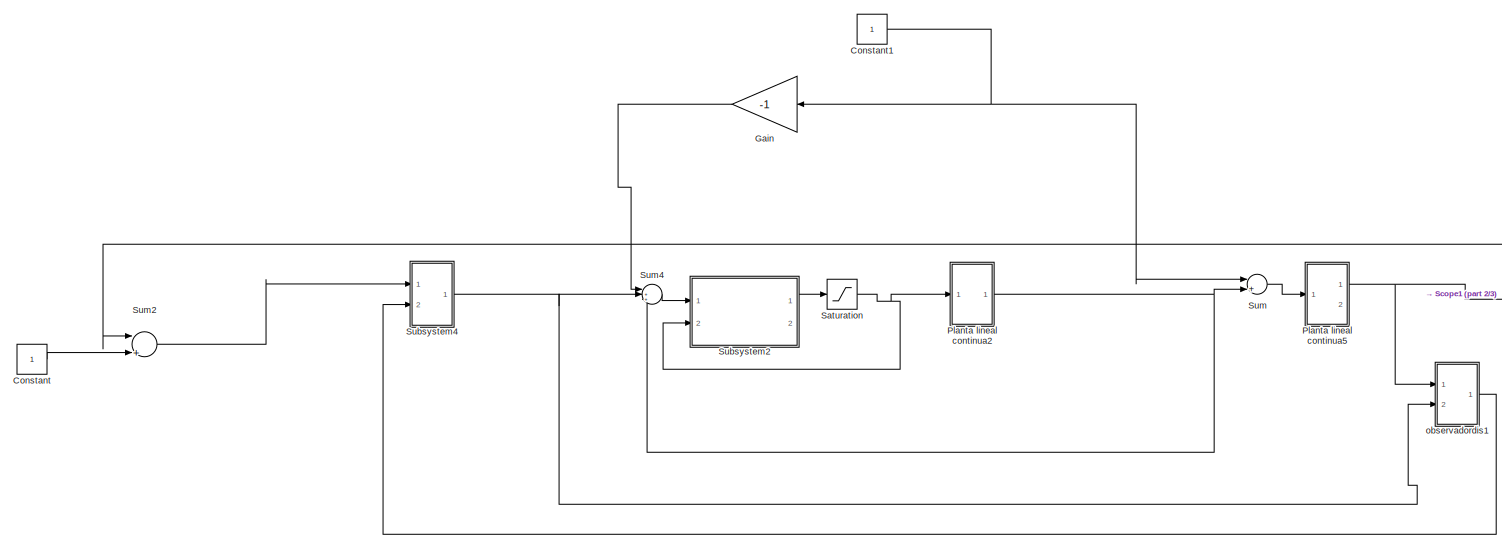
[diagram: root canvas - part 1/3, most of the canvas]
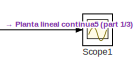
[diagram: root canvas - part 2/3, middle right region]
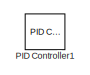
[diagram: root canvas - part 3/3, bottom right region]
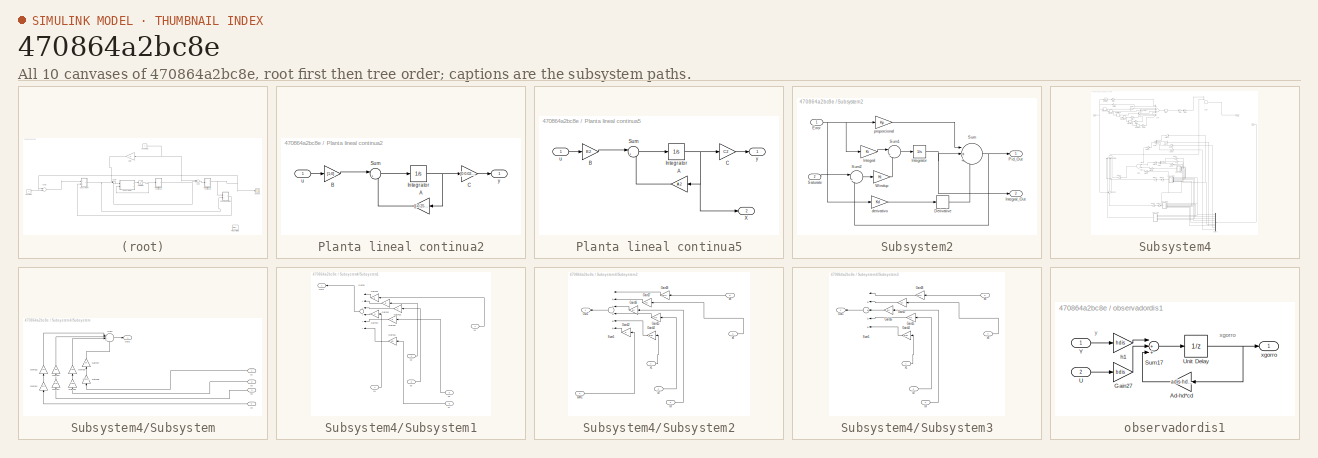
[diagram: thumbnail index - all 10 canvases of the model, root first then tree order]
MODEL slx_470864a2bc8e
KIND model
CONFIG AbsTol = auto
CONFIG EnableMultiTasking = off
CONFIG FixedStep = auto
CONFIG MaxStep = auto
CONFIG MinStep = auto
CONFIG RelTol = 1e-3
CONFIG SampleTimeConstraint = Unconstrained
CONFIG Solver = VariableStepAuto
CONFIG SolverName = VariableStepAuto
CONFIG StartTime = 0.0
CONFIG StopTime = 600
BLOCK [Constant] Constant
BLOCK [Constant] Constant1
BLOCK [Gain] Gain
  Gain = -1
  OutDataTypeStr = Inherit: Inherit via internal rule
  ParamDataTypeStr = Inherit: Inherit via internal rule
  SaturateOnIntegerOverflow = off
BLOCK [Reference] PID Controller1  REF=simulink/Continuous/PID Controller
  Ports = [1, 1]
  SourceBlock = simulink/Continuous/PID Controller
  SourceProductBaseCode = SL
  SourceProductName = Simulink
  SourceType = PID 1dof
BLOCK [SubSystem] Planta lineal continua2
  Ports = [1, 1]
  RequestExecContextInheritance = off
BLOCK [Gain] Planta lineal continua2/A
  Gain = [[-0.25,-0.025];[1 0]]
  Multiplication = Matrix(K*u) (u vector)
  OutDataTypeStr = Inherit: Inherit via internal rule
  ParamDataTypeStr = Inherit: Inherit via internal rule
  SaturateOnIntegerOverflow = off
BLOCK [Gain] Planta lineal continua2/B
  Gain = [1;0]
  Multiplication = Matrix(K*u) (u vector)
  OutDataTypeStr = Inherit: Inherit via internal rule
  ParamDataTypeStr = Inherit: Inherit via internal rule
  SaturateOnIntegerOverflow = off
BLOCK [Gain] Planta lineal continua2/C
  Gain = [0 0.025]
  Multiplication = Matrix(K*u) (u vector)
  OutDataTypeStr = Inherit: Inherit via internal rule
  ParamDataTypeStr = Inherit: Inherit via internal rule
  SaturateOnIntegerOverflow = off
BLOCK [Integrator] Planta lineal continua2/Integrator
  Ports = [1, 1]
BLOCK [Sum] Planta lineal continua2/Sum
  IconShape = round
  InputSameDT = off
  Inputs = |++
  OutDataTypeStr = Inherit: Inherit via internal rule
  Ports = [2, 1]
  SaturateOnIntegerOverflow = off
BLOCK [Inport] Planta lineal continua2/u
  IconDisplay = Port number
BLOCK [Outport] Planta lineal continua2/y
  IconDisplay = Port number
BLOCK [SubSystem] Planta lineal continua5
  Ports = [1, 2]
  RequestExecContextInheritance = off
BLOCK [Gain] Planta lineal continua5/A
  Gain = A2
  Multiplication = Matrix(K*u) (u vector)
  OutDataTypeStr = Inherit: Inherit via internal rule
  ParamDataTypeStr = Inherit: Inherit via internal rule
  SaturateOnIntegerOverflow = off
BLOCK [Gain] Planta lineal continua5/B
  Gain = B2
  Multiplication = Matrix(K*u) (u vector)
  OutDataTypeStr = Inherit: Inherit via internal rule
  ParamDataTypeStr = Inherit: Inherit via internal rule
  SaturateOnIntegerOverflow = off
BLOCK [Gain] Planta lineal continua5/C
  Gain = C2
  Multiplication = Matrix(K*u) (u vector)
  OutDataTypeStr = Inherit: Inherit via internal rule
  ParamDataTypeStr = Inherit: Inherit via internal rule
  SaturateOnIntegerOverflow = off
BLOCK [Integrator] Planta lineal continua5/Integrator
  Ports = [1, 1]
BLOCK [Sum] Planta lineal continua5/Sum
  IconShape = round
  InputSameDT = off
  Inputs = |++
  OutDataTypeStr = Inherit: Inherit via internal rule
  Ports = [2, 1]
  SaturateOnIntegerOverflow = off
BLOCK [Outport] Planta lineal continua5/X
  IconDisplay = Port number
  Port = 2
BLOCK [Inport] Planta lineal continua5/u
  IconDisplay = Port number
BLOCK [Outport] Planta lineal continua5/y
  IconDisplay = Port number
BLOCK [Saturate] Saturation
  InputPortMap = u0
  LowerLimit = -1
  Ports = [1, 1]
  UpperLimit = 1
  ZeroCross = off
BLOCK [Scope] Scope1
  Floating = off
  NumInputPorts = 1
  Ports = [1]
  ScopeSpecificationString = Simulink.scopes.TimeScopeBlockCfg('CurrentConfiguration', extmgr.ConfigurationSet(extmgr.Configuration('Core','General UI',true),extmgr.Configuration('Core','Source UI',true),extmgr.Configuration('Sources','WiredSimulink',true,'DataLoggingVariableName','ScopeData1'),extmgr.Configuration('Visuals','Time Domain',true,'SerializedDisplays',{struct('MinYLimReal','-0.1362','MaxYLimReal','1.22584','YLabe...<+1434ch>
BLOCK [SubSystem] Subsystem2
  Ports = [2, 2]
  RequestExecContextInheritance = off
BLOCK [Derivative] Subsystem2/Derivative
BLOCK [Inport] Subsystem2/Error
  IconDisplay = Port number
BLOCK [Gain] Subsystem2/Integral
  Gain = Ki
BLOCK [Outport] Subsystem2/Integral_Out
  IconDisplay = Port number
  Port = 2
BLOCK [Integrator] Subsystem2/Integrator
  Ports = [1, 1]
BLOCK [Outport] Subsystem2/Pid_Out
  IconDisplay = Port number
BLOCK [Inport] Subsystem2/Saturate
  IconDisplay = Port number
  Port = 2
BLOCK [Sum] Subsystem2/Sum
  IconShape = round
  Inputs = |+++
  Ports = [3, 1]
BLOCK [Sum] Subsystem2/Sum1
  IconShape = round
  Inputs = |++
  Ports = [2, 1]
BLOCK [Sum] Subsystem2/Sum2
  IconShape = round
  Inputs = |+-
  Ports = [2, 1]
BLOCK [Gain] Subsystem2/Windup
  Gain = Kt
BLOCK [Gain] Subsystem2/derivativo
  Gain = Kd
BLOCK [Gain] Subsystem2/proporcional
  Gain = Kp
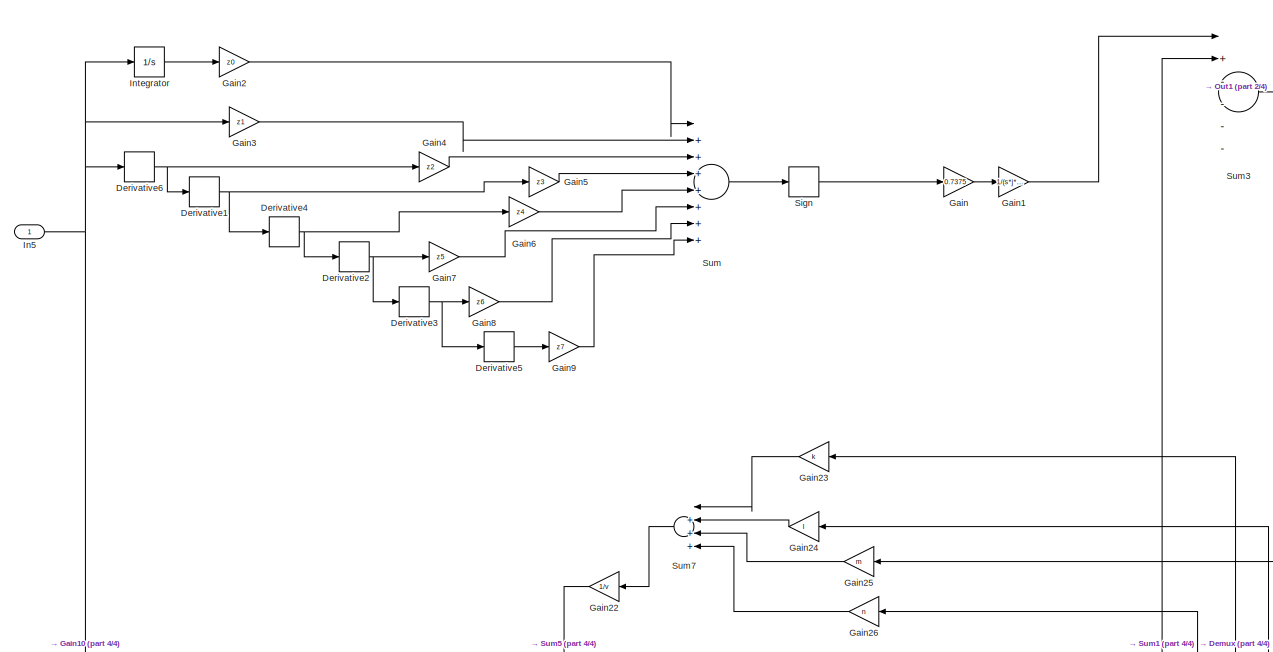
[diagram: Subsystem4 - part 1/4, top center region]
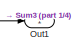
[diagram: Subsystem4 - part 2/4, top right region]
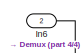
[diagram: Subsystem4 - part 3/4, top right region]
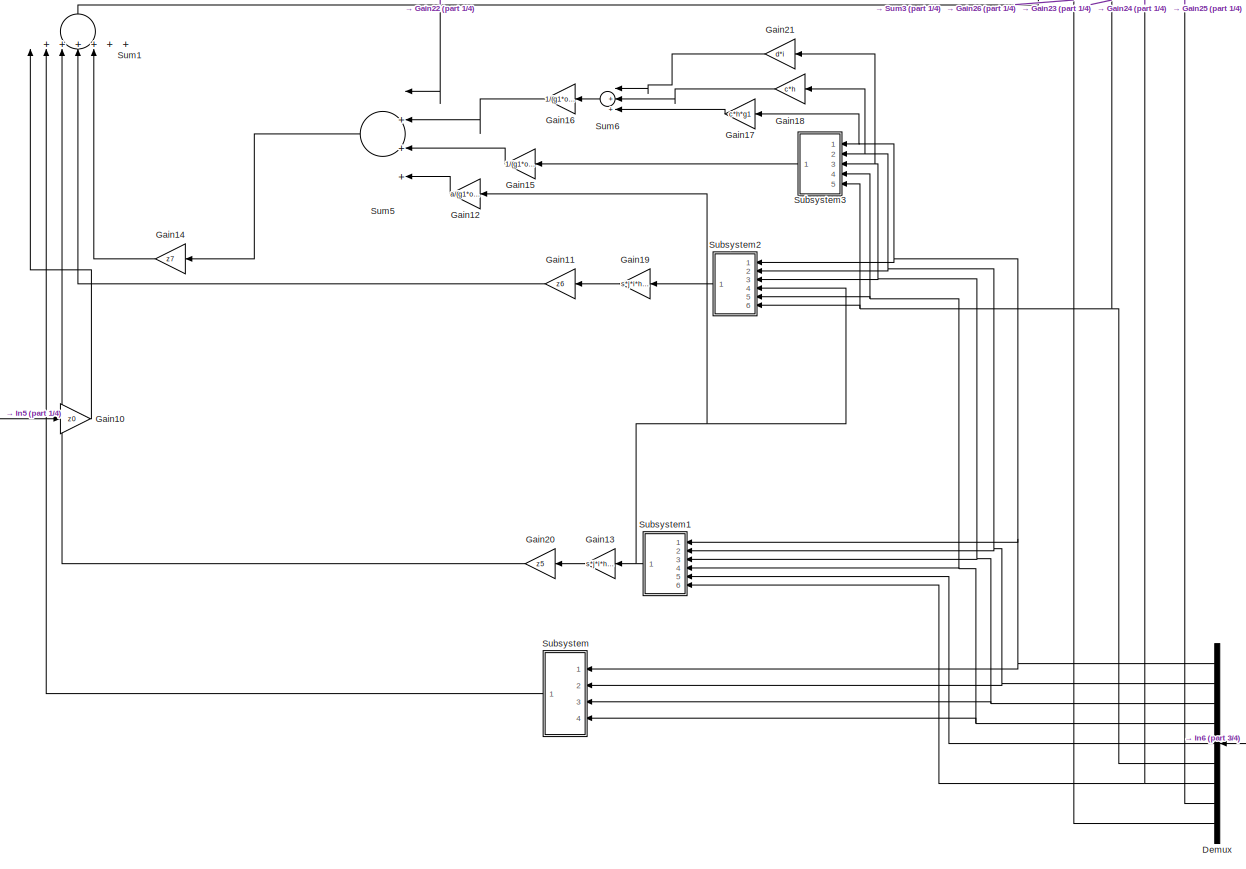
[diagram: Subsystem4 - part 4/4, bottom center region]
BLOCK [SubSystem] Subsystem4
  Ports = [2, 1]
  RequestExecContextInheritance = off
BLOCK [Demux] Subsystem4/Demux
  DisplayOption = bar
  Outputs = 9
  Ports = [1, 9]
BLOCK [Derivative] Subsystem4/Derivative1
BLOCK [Derivative] Subsystem4/Derivative2
BLOCK [Derivative] Subsystem4/Derivative3
BLOCK [Derivative] Subsystem4/Derivative4
BLOCK [Derivative] Subsystem4/Derivative5
BLOCK [Derivative] Subsystem4/Derivative6
BLOCK [Gain] Subsystem4/Gain
  Gain = 0.7375
  OutDataTypeStr = Inherit: Inherit via internal rule
  ParamDataTypeStr = Inherit: Inherit via internal rule
  SaturateOnIntegerOverflow = off
BLOCK [Gain] Subsystem4/Gain1
  Gain = 1/(s*j*i*h*g1*a*g2*o*v)
  OutDataTypeStr = Inherit: Inherit via internal rule
  ParamDataTypeStr = Inherit: Inherit via internal rule
  SaturateOnIntegerOverflow = off
BLOCK [Gain] Subsystem4/Gain10
  Gain = z0
  OutDataTypeStr = Inherit: Inherit via internal rule
  ParamDataTypeStr = Inherit: Inherit via internal rule
  SaturateOnIntegerOverflow = off
BLOCK [Gain] Subsystem4/Gain11
  Gain = z6
  OutDataTypeStr = Inherit: Inherit via internal rule
  ParamDataTypeStr = Inherit: Inherit via internal rule
  SaturateOnIntegerOverflow = off
BLOCK [Gain] Subsystem4/Gain12
  Gain = a/(g1*o*v)
  OutDataTypeStr = Inherit: Inherit via internal rule
  ParamDataTypeStr = Inherit: Inherit via internal rule
  SaturateOnIntegerOverflow = off
BLOCK [Gain] Subsystem4/Gain13
  Gain = s*j*i*h*g1
  OutDataTypeStr = Inherit: Inherit via internal rule
  ParamDataTypeStr = Inherit: Inherit via internal rule
  SaturateOnIntegerOverflow = off
BLOCK [Gain] Subsystem4/Gain14
  Gain = z7
  OutDataTypeStr = Inherit: Inherit via internal rule
  ParamDataTypeStr = Inherit: Inherit via internal rule
  SaturateOnIntegerOverflow = off
BLOCK [Gain] Subsystem4/Gain15
  Gain = 1/(g1*o*v)
  OutDataTypeStr = Inherit: Inherit via internal rule
  ParamDataTypeStr = Inherit: Inherit via internal rule
  SaturateOnIntegerOverflow = off
BLOCK [Gain] Subsystem4/Gain16
  Gain = 1/(g1*o*v)
  OutDataTypeStr = Inherit: Inherit via internal rule
  ParamDataTypeStr = Inherit: Inherit via internal rule
  SaturateOnIntegerOverflow = off
BLOCK [Gain] Subsystem4/Gain17
  Gain = c*h*g1
  OutDataTypeStr = Inherit: Inherit via internal rule
  ParamDataTypeStr = Inherit: Inherit via internal rule
  SaturateOnIntegerOverflow = off
BLOCK [Gain] Subsystem4/Gain18
  Gain = c*h
  OutDataTypeStr = Inherit: Inherit via internal rule
  ParamDataTypeStr = Inherit: Inherit via internal rule
  SaturateOnIntegerOverflow = off
BLOCK [Gain] Subsystem4/Gain19
  Gain = s*j*i*h*g1
  OutDataTypeStr = Inherit: Inherit via internal rule
  ParamDataTypeStr = Inherit: Inherit via internal rule
  SaturateOnIntegerOverflow = off
BLOCK [Gain] Subsystem4/Gain2
  Gain = z0
  OutDataTypeStr = Inherit: Inherit via internal rule
  ParamDataTypeStr = Inherit: Inherit via internal rule
  SaturateOnIntegerOverflow = off
BLOCK [Gain] Subsystem4/Gain20
  Gain = z5
  OutDataTypeStr = Inherit: Inherit via internal rule
  ParamDataTypeStr = Inherit: Inherit via internal rule
  SaturateOnIntegerOverflow = off
BLOCK [Gain] Subsystem4/Gain21
  Gain = d*i
  OutDataTypeStr = Inherit: Inherit via internal rule
  ParamDataTypeStr = Inherit: Inherit via internal rule
  SaturateOnIntegerOverflow = off
BLOCK [Gain] Subsystem4/Gain22
  Gain = 1/v
  OutDataTypeStr = Inherit: Inherit via internal rule
  ParamDataTypeStr = Inherit: Inherit via internal rule
  SaturateOnIntegerOverflow = off
BLOCK [Gain] Subsystem4/Gain23
  Gain = k
  OutDataTypeStr = Inherit: Inherit via internal rule
  ParamDataTypeStr = Inherit: Inherit via internal rule
  SaturateOnIntegerOverflow = off
BLOCK [Gain] Subsystem4/Gain24
  Gain = l
  OutDataTypeStr = Inherit: Inherit via internal rule
  ParamDataTypeStr = Inherit: Inherit via internal rule
  SaturateOnIntegerOverflow = off
BLOCK [Gain] Subsystem4/Gain25
  Gain = m
  OutDataTypeStr = Inherit: Inherit via internal rule
  ParamDataTypeStr = Inherit: Inherit via internal rule
  SaturateOnIntegerOverflow = off
BLOCK [Gain] Subsystem4/Gain26
  Gain = n
  OutDataTypeStr = Inherit: Inherit via internal rule
  ParamDataTypeStr = Inherit: Inherit via internal rule
  SaturateOnIntegerOverflow = off
BLOCK [Gain] Subsystem4/Gain3
  Gain = z1
  OutDataTypeStr = Inherit: Inherit via internal rule
  ParamDataTypeStr = Inherit: Inherit via internal rule
  SaturateOnIntegerOverflow = off
BLOCK [Gain] Subsystem4/Gain4
  Gain = z2
  OutDataTypeStr = Inherit: Inherit via internal rule
  ParamDataTypeStr = Inherit: Inherit via internal rule
  SaturateOnIntegerOverflow = off
BLOCK [Gain] Subsystem4/Gain5
  Gain = z3
  OutDataTypeStr = Inherit: Inherit via internal rule
  ParamDataTypeStr = Inherit: Inherit via internal rule
  SaturateOnIntegerOverflow = off
BLOCK [Gain] Subsystem4/Gain6
  Gain = z4
  OutDataTypeStr = Inherit: Inherit via internal rule
  ParamDataTypeStr = Inherit: Inherit via internal rule
  SaturateOnIntegerOverflow = off
BLOCK [Gain] Subsystem4/Gain7
  Gain = z5
  OutDataTypeStr = Inherit: Inherit via internal rule
  ParamDataTypeStr = Inherit: Inherit via internal rule
  SaturateOnIntegerOverflow = off
BLOCK [Gain] Subsystem4/Gain8
  Gain = z6
  OutDataTypeStr = Inherit: Inherit via internal rule
  ParamDataTypeStr = Inherit: Inherit via internal rule
  SaturateOnIntegerOverflow = off
BLOCK [Gain] Subsystem4/Gain9
  Gain = z7
  OutDataTypeStr = Inherit: Inherit via internal rule
  ParamDataTypeStr = Inherit: Inherit via internal rule
  SaturateOnIntegerOverflow = off
BLOCK [Inport] Subsystem4/In5
  IconDisplay = Port number
BLOCK [Inport] Subsystem4/In6
  IconDisplay = Port number
  Port = 2
BLOCK [Integrator] Subsystem4/Integrator
  Ports = [1, 1]
BLOCK [Outport] Subsystem4/Out1
  IconDisplay = Port number
BLOCK [Signum] Subsystem4/Sign
  ZeroCross = off
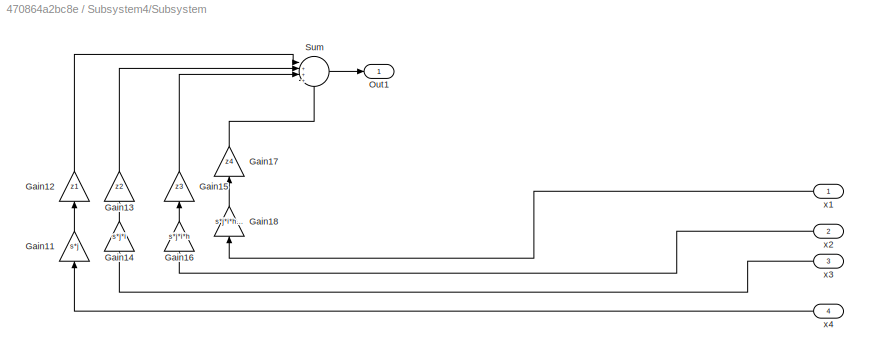
BLOCK [SubSystem] Subsystem4/Subsystem
  Ports = [4, 1]
  RequestExecContextInheritance = off
BLOCK [Gain] Subsystem4/Subsystem/Gain11
  Gain = s*j
  OutDataTypeStr = Inherit: Inherit via internal rule
  ParamDataTypeStr = Inherit: Inherit via internal rule
  SaturateOnIntegerOverflow = off
BLOCK [Gain] Subsystem4/Subsystem/Gain12
  Gain = z1
  OutDataTypeStr = Inherit: Inherit via internal rule
  ParamDataTypeStr = Inherit: Inherit via internal rule
  SaturateOnIntegerOverflow = off
BLOCK [Gain] Subsystem4/Subsystem/Gain13
  Gain = z2
  OutDataTypeStr = Inherit: Inherit via internal rule
  ParamDataTypeStr = Inherit: Inherit via internal rule
  SaturateOnIntegerOverflow = off
BLOCK [Gain] Subsystem4/Subsystem/Gain14
  Gain = s*j*i
  OutDataTypeStr = Inherit: Inherit via internal rule
  ParamDataTypeStr = Inherit: Inherit via internal rule
  SaturateOnIntegerOverflow = off
BLOCK [Gain] Subsystem4/Subsystem/Gain15
  Gain = z3
  OutDataTypeStr = Inherit: Inherit via internal rule
  ParamDataTypeStr = Inherit: Inherit via internal rule
  SaturateOnIntegerOverflow = off
BLOCK [Gain] Subsystem4/Subsystem/Gain16
  Gain = s*j*i*h
  OutDataTypeStr = Inherit: Inherit via internal rule
  ParamDataTypeStr = Inherit: Inherit via internal rule
  SaturateOnIntegerOverflow = off
BLOCK [Gain] Subsystem4/Subsystem/Gain17
  Gain = z4
  OutDataTypeStr = Inherit: Inherit via internal rule
  ParamDataTypeStr = Inherit: Inherit via internal rule
  SaturateOnIntegerOverflow = off
BLOCK [Gain] Subsystem4/Subsystem/Gain18
  Gain = s*j*i*h*g1
  OutDataTypeStr = Inherit: Inherit via internal rule
  ParamDataTypeStr = Inherit: Inherit via internal rule
  SaturateOnIntegerOverflow = off
BLOCK [Outport] Subsystem4/Subsystem/Out1
  IconDisplay = Port number
BLOCK [Sum] Subsystem4/Subsystem/Sum
  IconShape = round
  InputSameDT = off
  Inputs = |++++
  OutDataTypeStr = Inherit: Inherit via internal rule
  Ports = [4, 1]
  SaturateOnIntegerOverflow = off
BLOCK [Inport] Subsystem4/Subsystem/x1 
  IconDisplay = Port number
BLOCK [Inport] Subsystem4/Subsystem/x2 
  IconDisplay = Port number
  Port = 2
BLOCK [Inport] Subsystem4/Subsystem/x3 
  IconDisplay = Port number
  Port = 3
BLOCK [Inport] Subsystem4/Subsystem/x4 
  IconDisplay = Port number
  Port = 4
BLOCK [SubSystem] Subsystem4/Subsystem1
  Ports = [6, 1]
  RequestExecContextInheritance = off
BLOCK [Gain] Subsystem4/Subsystem1/Gain11
  Gain = a
  OutDataTypeStr = Inherit: Inherit via internal rule
  ParamDataTypeStr = Inherit: Inherit via internal rule
  SaturateOnIntegerOverflow = off
BLOCK [Gain] Subsystem4/Subsystem1/Gain12
  Gain = b
  OutDataTypeStr = Inherit: Inherit via internal rule
  ParamDataTypeStr = Inherit: Inherit via internal rule
  SaturateOnIntegerOverflow = off
BLOCK [Gain] Subsystem4/Subsystem1/Gain13
  Gain = c
  OutDataTypeStr = Inherit: Inherit via internal rule
  ParamDataTypeStr = Inherit: Inherit via internal rule
  SaturateOnIntegerOverflow = off
BLOCK [Gain] Subsystem4/Subsystem1/Gain14
  Gain = d
  OutDataTypeStr = Inherit: Inherit via internal rule
  ParamDataTypeStr = Inherit: Inherit via internal rule
  SaturateOnIntegerOverflow = off
BLOCK [Gain] Subsystem4/Subsystem1/Gain15
  Gain = e
  OutDataTypeStr = Inherit: Inherit via internal rule
  ParamDataTypeStr = Inherit: Inherit via internal rule
  SaturateOnIntegerOverflow = off
BLOCK [Gain] Subsystem4/Subsystem1/Gain16
  Gain = g2
  OutDataTypeStr = Inherit: Inherit via internal rule
  ParamDataTypeStr = Inherit: Inherit via internal rule
  SaturateOnIntegerOverflow = off
BLOCK [Outport] Subsystem4/Subsystem1/Out1
  IconDisplay = Port number
BLOCK [Sum] Subsystem4/Subsystem1/Sum5
  InputSameDT = off
  Inputs = |++++++
  OutDataTypeStr = Inherit: Inherit via internal rule
  Ports = [6, 1]
  SaturateOnIntegerOverflow = off
BLOCK [Inport] Subsystem4/Subsystem1/x1 
  IconDisplay = Port number
BLOCK [Inport] Subsystem4/Subsystem1/x2 
  IconDisplay = Port number
  Port = 2
BLOCK [Inport] Subsystem4/Subsystem1/x3 
  IconDisplay = Port number
  Port = 3
BLOCK [Inport] Subsystem4/Subsystem1/x4 
  IconDisplay = Port number
  Port = 4
BLOCK [Inport] Subsystem4/Subsystem1/x5 
  IconDisplay = Port number
  Port = 5
BLOCK [Inport] Subsystem4/Subsystem1/x7 
  IconDisplay = Port number
  Port = 6
BLOCK [SubSystem] Subsystem4/Subsystem2
  Ports = [6, 1]
  RequestExecContextInheritance = off
BLOCK [Gain] Subsystem4/Subsystem2/Gain12
  Gain = a
  OutDataTypeStr = Inherit: Inherit via internal rule
  ParamDataTypeStr = Inherit: Inherit via internal rule
  SaturateOnIntegerOverflow = off
BLOCK [Gain] Subsystem4/Subsystem2/Gain14
  Gain = b*g1
  OutDataTypeStr = Inherit: Inherit via internal rule
  ParamDataTypeStr = Inherit: Inherit via internal rule
  SaturateOnIntegerOverflow = off
BLOCK [Gain] Subsystem4/Subsystem2/Gain15
  Gain = s*h
  OutDataTypeStr = Inherit: Inherit via internal rule
  ParamDataTypeStr = Inherit: Inherit via internal rule
  SaturateOnIntegerOverflow = off
BLOCK [Gain] Subsystem4/Subsystem2/Gain16
  Gain = d*i
  OutDataTypeStr = Inherit: Inherit via internal rule
  ParamDataTypeStr = Inherit: Inherit via internal rule
  SaturateOnIntegerOverflow = off
BLOCK [Gain] Subsystem4/Subsystem2/Gain17
  Gain = e*j
  OutDataTypeStr = Inherit: Inherit via internal rule
  ParamDataTypeStr = Inherit: Inherit via internal rule
  SaturateOnIntegerOverflow = off
BLOCK [Gain] Subsystem4/Subsystem2/Gain18
  Gain = g2*o
  OutDataTypeStr = Inherit: Inherit via internal rule
  ParamDataTypeStr = Inherit: Inherit via internal rule
  SaturateOnIntegerOverflow = off
BLOCK [Outport] Subsystem4/Subsystem2/Out1
  IconDisplay = Port number
BLOCK [Sum] Subsystem4/Subsystem2/Sum5
  InputSameDT = off
  Inputs = |++++++
  OutDataTypeStr = Inherit: Inherit via internal rule
  Ports = [6, 1]
  SaturateOnIntegerOverflow = off
BLOCK [Inport] Subsystem4/Subsystem2/sum1 
  IconDisplay = Port number
  Port = 4
BLOCK [Inport] Subsystem4/Subsystem2/x1 
  IconDisplay = Port number
BLOCK [Inport] Subsystem4/Subsystem2/x2 
  IconDisplay = Port number
  Port = 2
BLOCK [Inport] Subsystem4/Subsystem2/x3 
  IconDisplay = Port number
  Port = 3
BLOCK [Inport] Subsystem4/Subsystem2/x4 
  IconDisplay = Port number
  Port = 5
BLOCK [Inport] Subsystem4/Subsystem2/x6 
  IconDisplay = Port number
  Port = 6
BLOCK [SubSystem] Subsystem4/Subsystem3
  Ports = [5, 1]
  RequestExecContextInheritance = off
BLOCK [Gain] Subsystem4/Subsystem3/Gain14
  Gain = b*g1
  OutDataTypeStr = Inherit: Inherit via internal rule
  ParamDataTypeStr = Inherit: Inherit via internal rule
  SaturateOnIntegerOverflow = off
BLOCK [Gain] Subsystem4/Subsystem3/Gain15
  Gain = s*h
  OutDataTypeStr = Inherit: Inherit via internal rule
  ParamDataTypeStr = Inherit: Inherit via internal rule
  SaturateOnIntegerOverflow = off
BLOCK [Gain] Subsystem4/Subsystem3/Gain16
  Gain = d*i
  OutDataTypeStr = Inherit: Inherit via internal rule
  ParamDataTypeStr = Inherit: Inherit via internal rule
  SaturateOnIntegerOverflow = off
BLOCK [Gain] Subsystem4/Subsystem3/Gain17
  Gain = e*j
  OutDataTypeStr = Inherit: Inherit via internal rule
  ParamDataTypeStr = Inherit: Inherit via internal rule
  SaturateOnIntegerOverflow = off
BLOCK [Gain] Subsystem4/Subsystem3/Gain18
  Gain = g2*o
  OutDataTypeStr = Inherit: Inherit via internal rule
  ParamDataTypeStr = Inherit: Inherit via internal rule
  SaturateOnIntegerOverflow = off
BLOCK [Outport] Subsystem4/Subsystem3/Out1
  IconDisplay = Port number
BLOCK [Sum] Subsystem4/Subsystem3/Sum5
  InputSameDT = off
  Inputs = |+++++
  OutDataTypeStr = Inherit: Inherit via internal rule
  Ports = [5, 1]
  SaturateOnIntegerOverflow = off
BLOCK [Inport] Subsystem4/Subsystem3/x1 
  IconDisplay = Port number
BLOCK [Inport] Subsystem4/Subsystem3/x2 
  IconDisplay = Port number
  Port = 2
BLOCK [Inport] Subsystem4/Subsystem3/x3 
  IconDisplay = Port number
  Port = 3
BLOCK [Inport] Subsystem4/Subsystem3/x4 
  IconDisplay = Port number
  Port = 4
BLOCK [Inport] Subsystem4/Subsystem3/x6 
  IconDisplay = Port number
  Port = 5
BLOCK [Sum] Subsystem4/Sum
  InputSameDT = off
  Inputs = |++++++++
  OutDataTypeStr = Inherit: Inherit via internal rule
  Ports = [8, 1]
  SaturateOnIntegerOverflow = off
BLOCK [Sum] Subsystem4/Sum1
  InputSameDT = off
  Inputs = |+++++++
  OutDataTypeStr = Inherit: Inherit via internal rule
  Ports = [7, 1]
  SaturateOnIntegerOverflow = off
BLOCK [Sum] Subsystem4/Sum3
  InputSameDT = off
  Inputs = |+-----
  OutDataTypeStr = Inherit: Inherit via internal rule
  Ports = [6, 1]
  SaturateOnIntegerOverflow = off
BLOCK [Sum] Subsystem4/Sum5
  InputSameDT = off
  Inputs = |++++
  OutDataTypeStr = Inherit: Inherit via internal rule
  Ports = [4, 1]
  SaturateOnIntegerOverflow = off
BLOCK [Sum] Subsystem4/Sum6
  InputSameDT = off
  Inputs = |+++
  OutDataTypeStr = Inherit: Inherit via internal rule
  Ports = [3, 1]
  SaturateOnIntegerOverflow = off
BLOCK [Sum] Subsystem4/Sum7
  InputSameDT = off
  Inputs = |++++
  OutDataTypeStr = Inherit: Inherit via internal rule
  Ports = [4, 1]
  SaturateOnIntegerOverflow = off
BLOCK [Sum] Sum
  InputSameDT = off
  Inputs = |++
  OutDataTypeStr = Inherit: Inherit via internal rule
  Ports = [2, 1]
  SaturateOnIntegerOverflow = off
BLOCK [Sum] Sum2
  InputSameDT = off
  Inputs = |+-
  OutDataTypeStr = Inherit: Inherit via internal rule
  Ports = [2, 1]
  SaturateOnIntegerOverflow = off
BLOCK [Sum] Sum4
  IconShape = round
  InputSameDT = off
  Inputs = |++-
  OutDataTypeStr = Inherit: Inherit via internal rule
  Ports = [3, 1]
  SaturateOnIntegerOverflow = off
BLOCK [SubSystem] observadordis1
  Ports = [2, 1]
  RequestExecContextInheritance = off
BLOCK [Gain] observadordis1/Ad-hd*cd
  Gain = adis-hdis*cdis
  Multiplication = Matrix(K*u) (u vector)
  OutDataTypeStr = Inherit: Inherit via internal rule
  ParamDataTypeStr = Inherit: Inherit via internal rule
  SampleTime = tm
  SaturateOnIntegerOverflow = off
BLOCK [Gain] observadordis1/Gain27
  Gain = bdis
  Multiplication = Matrix(K*u) (u vector)
  OutDataTypeStr = Inherit: Inherit via internal rule
  ParamDataTypeStr = Inherit: Inherit via internal rule
  SampleTime = tm
  SaturateOnIntegerOverflow = off
BLOCK [Sum] observadordis1/Sum17
  InputSameDT = off
  Inputs = |+++
  OutDataTypeStr = Inherit: Inherit via internal rule
  Ports = [3, 1]
  SaturateOnIntegerOverflow = off
BLOCK [Inport] observadordis1/U
  IconDisplay = Port number
  Port = 2
BLOCK [UnitDelay] observadordis1/Unit Delay
  HasFrameUpgradeWarning = on
  SampleTime = tm
BLOCK [Inport] observadordis1/Y
  IconDisplay = Port number
BLOCK [Gain] observadordis1/h1
  Gain = hdis
  Multiplication = Matrix(K*u) (u vector)
  OutDataTypeStr = Inherit: Inherit via internal rule
  ParamDataTypeStr = Inherit: Inherit via internal rule
  SampleTime = tm
  SaturateOnIntegerOverflow = off
BLOCK [Outport] observadordis1/xgorro
  IconDisplay = Port number
ANNOTATION observadordis1: xgorro
ANNOTATION observadordis1: y
NET Constant1:1 -> Gain:1, Sum:1
LINE Constant:1 -> Sum2:2
LINE Gain:1 -> Sum4:1
LINE Planta lineal continua2/A:1 -> Planta lineal continua2/Sum:2
LINE Planta lineal continua2/B:1 -> Planta lineal continua2/Sum:1
LINE Planta lineal continua2/C:1 -> Planta lineal continua2/y:1
NET Planta lineal continua2/Integrator:1 -> Planta lineal continua2/A:1, Planta lineal continua2/C:1
LINE Planta lineal continua2/Sum:1 -> Planta lineal continua2/Integrator:1
LINE Planta lineal continua2/u:1 -> Planta lineal continua2/B:1
NET Planta lineal continua2:1 -> Sum4:3, Sum:2
LINE Planta lineal continua5/A:1 -> Planta lineal continua5/Sum:2
LINE Planta lineal continua5/B:1 -> Planta lineal continua5/Sum:1
LINE Planta lineal continua5/C:1 -> Planta lineal continua5/y:1
NET Planta lineal continua5/Integrator:1 -> Planta lineal continua5/A:1, Planta lineal continua5/C:1, Planta lineal continua5/X:1
LINE Planta lineal continua5/Sum:1 -> Planta lineal continua5/Integrator:1
LINE Planta lineal continua5/u:1 -> Planta lineal continua5/B:1
NET Planta lineal continua5:1 -> Scope1:1, Sum2:1, observadordis1:1
NET Saturation:1 -> Planta lineal continua2:1, Subsystem2:2
LINE Subsystem2/Derivative:1 -> Subsystem2/Sum:3
NET Subsystem2/Error:1 -> Subsystem2/Integral:1, Subsystem2/derivativo:1, Subsystem2/proporcional:1
LINE Subsystem2/Integral:1 -> Subsystem2/Sum1:1
NET Subsystem2/Integrator:1 -> Subsystem2/Integral_Out:1, Subsystem2/Sum:2
LINE Subsystem2/Saturate:1 -> Subsystem2/Sum2:1
LINE Subsystem2/Sum1:1 -> Subsystem2/Integrator:1
LINE Subsystem2/Sum2:1 -> Subsystem2/Windup:1
NET Subsystem2/Sum:1 -> Subsystem2/Pid_Out:1, Subsystem2/Sum2:2
LINE Subsystem2/Windup:1 -> Subsystem2/Sum1:2
LINE Subsystem2/derivativo:1 -> Subsystem2/Derivative:1
LINE Subsystem2/proporcional:1 -> Subsystem2/Sum:1
LINE Subsystem2:1 -> Saturation:1
NET Subsystem4/Demux:1 -> Subsystem4/Gain17:1, Subsystem4/Subsystem1:1, Subsystem4/Subsystem2:1, Subsystem4/Subsystem3:1, Subsystem4/Subsystem:1
NET Subsystem4/Demux:2 -> Subsystem4/Gain18:1, Subsystem4/Subsystem1:2, Subsystem4/Subsystem2:2, Subsystem4/Subsystem3:2, Subsystem4/Subsystem:2
NET Subsystem4/Demux:3 -> Subsystem4/Gain21:1, Subsystem4/Subsystem1:3, Subsystem4/Subsystem2:3, Subsystem4/Subsystem3:3, Subsystem4/Subsystem:3
NET Subsystem4/Demux:4 -> Subsystem4/Subsystem1:4, Subsystem4/Subsystem2:5, Subsystem4/Subsystem3:4, Subsystem4/Subsystem:4
LINE Subsystem4/Demux:5 -> Subsystem4/Subsystem1:5
NET Subsystem4/Demux:6 -> Subsystem4/Gain23:1, Subsystem4/Subsystem2:6, Subsystem4/Subsystem3:5
NET Subsystem4/Demux:7 -> Subsystem4/Gain24:1, Subsystem4/Subsystem1:6
LINE Subsystem4/Demux:8 -> Subsystem4/Gain25:1
LINE Subsystem4/Demux:9 -> Subsystem4/Gain26:1
NET Subsystem4/Derivative1:1 -> Subsystem4/Derivative4:1, Subsystem4/Gain5:1
NET Subsystem4/Derivative2:1 -> Subsystem4/Derivative3:1, Subsystem4/Gain7:1
NET Subsystem4/Derivative3:1 -> Subsystem4/Derivative5:1, Subsystem4/Gain8:1
NET Subsystem4/Derivative4:1 -> Subsystem4/Derivative2:1, Subsystem4/Gain6:1
LINE Subsystem4/Derivative5:1 -> Subsystem4/Gain9:1
NET Subsystem4/Derivative6:1 -> Subsystem4/Derivative1:1, Subsystem4/Gain4:1
LINE Subsystem4/Gain10:1 -> Subsystem4/Sum1:1
LINE Subsystem4/Gain11:1 -> Subsystem4/Sum1:4
LINE Subsystem4/Gain12:1 -> Subsystem4/Sum5:4
LINE Subsystem4/Gain13:1 -> Subsystem4/Gain20:1
LINE Subsystem4/Gain14:1 -> Subsystem4/Sum1:5
LINE Subsystem4/Gain15:1 -> Subsystem4/Sum5:3
LINE Subsystem4/Gain16:1 -> Subsystem4/Sum5:2
LINE Subsystem4/Gain17:1 -> Subsystem4/Sum6:3
LINE Subsystem4/Gain18:1 -> Subsystem4/Sum6:2
LINE Subsystem4/Gain19:1 -> Subsystem4/Gain11:1
LINE Subsystem4/Gain1:1 -> Subsystem4/Sum3:1
LINE Subsystem4/Gain20:1 -> Subsystem4/Sum1:3
LINE Subsystem4/Gain21:1 -> Subsystem4/Sum6:1
LINE Subsystem4/Gain22:1 -> Subsystem4/Sum5:1
LINE Subsystem4/Gain23:1 -> Subsystem4/Sum7:1
LINE Subsystem4/Gain24:1 -> Subsystem4/Sum7:2
LINE Subsystem4/Gain25:1 -> Subsystem4/Sum7:3
LINE Subsystem4/Gain26:1 -> Subsystem4/Sum7:4
LINE Subsystem4/Gain2:1 -> Subsystem4/Sum:1
LINE Subsystem4/Gain3:1 -> Subsystem4/Sum:2
LINE Subsystem4/Gain4:1 -> Subsystem4/Sum:3
LINE Subsystem4/Gain5:1 -> Subsystem4/Sum:4
LINE Subsystem4/Gain6:1 -> Subsystem4/Sum:5
LINE Subsystem4/Gain7:1 -> Subsystem4/Sum:6
LINE Subsystem4/Gain8:1 -> Subsystem4/Sum:7
LINE Subsystem4/Gain9:1 -> Subsystem4/Sum:8
LINE Subsystem4/Gain:1 -> Subsystem4/Gain1:1
NET Subsystem4/In5:1 -> Subsystem4/Derivative6:1, Subsystem4/Gain10:1, Subsystem4/Gain3:1, Subsystem4/Integrator:1
LINE Subsystem4/In6:1 -> Subsystem4/Demux:1
LINE Subsystem4/Integrator:1 -> Subsystem4/Gain2:1
LINE Subsystem4/Sign:1 -> Subsystem4/Gain:1
LINE Subsystem4/Subsystem/Gain11:1 -> Subsystem4/Subsystem/Gain12:1
LINE Subsystem4/Subsystem/Gain12:1 -> Subsystem4/Subsystem/Sum:1
LINE Subsystem4/Subsystem/Gain13:1 -> Subsystem4/Subsystem/Sum:2
LINE Subsystem4/Subsystem/Gain14:1 -> Subsystem4/Subsystem/Gain13:1
LINE Subsystem4/Subsystem/Gain15:1 -> Subsystem4/Subsystem/Sum:3
LINE Subsystem4/Subsystem/Gain16:1 -> Subsystem4/Subsystem/Gain15:1
LINE Subsystem4/Subsystem/Gain17:1 -> Subsystem4/Subsystem/Sum:4
LINE Subsystem4/Subsystem/Gain18:1 -> Subsystem4/Subsystem/Gain17:1
LINE Subsystem4/Subsystem/Sum:1 -> Subsystem4/Subsystem/Out1:1
LINE Subsystem4/Subsystem/x1 :1 -> Subsystem4/Subsystem/Gain18:1
LINE Subsystem4/Subsystem/x2 :1 -> Subsystem4/Subsystem/Gain16:1
LINE Subsystem4/Subsystem/x3 :1 -> Subsystem4/Subsystem/Gain14:1
LINE Subsystem4/Subsystem/x4 :1 -> Subsystem4/Subsystem/Gain11:1
LINE Subsystem4/Subsystem1/Gain11:1 -> Subsystem4/Subsystem1/Sum5:1
LINE Subsystem4/Subsystem1/Gain12:1 -> Subsystem4/Subsystem1/Sum5:2
LINE Subsystem4/Subsystem1/Gain13:1 -> Subsystem4/Subsystem1/Sum5:3
LINE Subsystem4/Subsystem1/Gain14:1 -> Subsystem4/Subsystem1/Sum5:4
LINE Subsystem4/Subsystem1/Gain15:1 -> Subsystem4/Subsystem1/Sum5:5
LINE Subsystem4/Subsystem1/Gain16:1 -> Subsystem4/Subsystem1/Sum5:6
LINE Subsystem4/Subsystem1/Sum5:1 -> Subsystem4/Subsystem1/Out1:1
LINE Subsystem4/Subsystem1/x1 :1 -> Subsystem4/Subsystem1/Gain11:1
LINE Subsystem4/Subsystem1/x2 :1 -> Subsystem4/Subsystem1/Gain12:1
LINE Subsystem4/Subsystem1/x3 :1 -> Subsystem4/Subsystem1/Gain13:1
LINE Subsystem4/Subsystem1/x4 :1 -> Subsystem4/Subsystem1/Gain14:1
LINE Subsystem4/Subsystem1/x5 :1 -> Subsystem4/Subsystem1/Gain15:1
LINE Subsystem4/Subsystem1/x7 :1 -> Subsystem4/Subsystem1/Gain16:1
NET Subsystem4/Subsystem1:1 -> Subsystem4/Gain12:1, Subsystem4/Gain13:1, Subsystem4/Subsystem2:4
LINE Subsystem4/Subsystem2/Gain12:1 -> Subsystem4/Subsystem2/Sum5:6
LINE Subsystem4/Subsystem2/Gain14:1 -> Subsystem4/Subsystem2/Sum5:5
LINE Subsystem4/Subsystem2/Gain15:1 -> Subsystem4/Subsystem2/Sum5:4
LINE Subsystem4/Subsystem2/Gain16:1 -> Subsystem4/Subsystem2/Sum5:3
LINE Subsystem4/Subsystem2/Gain17:1 -> Subsystem4/Subsystem2/Sum5:2
LINE Subsystem4/Subsystem2/Gain18:1 -> Subsystem4/Subsystem2/Sum5:1
LINE Subsystem4/Subsystem2/Sum5:1 -> Subsystem4/Subsystem2/Out1:1
LINE Subsystem4/Subsystem2/sum1 :1 -> Subsystem4/Subsystem2/Gain12:1
LINE Subsystem4/Subsystem2/x1 :1 -> Subsystem4/Subsystem2/Gain14:1
LINE Subsystem4/Subsystem2/x2 :1 -> Subsystem4/Subsystem2/Gain15:1
LINE Subsystem4/Subsystem2/x3 :1 -> Subsystem4/Subsystem2/Gain16:1
LINE Subsystem4/Subsystem2/x4 :1 -> Subsystem4/Subsystem2/Gain17:1
LINE Subsystem4/Subsystem2/x6 :1 -> Subsystem4/Subsystem2/Gain18:1
LINE Subsystem4/Subsystem2:1 -> Subsystem4/Gain19:1
LINE Subsystem4/Subsystem3/Gain14:1 -> Subsystem4/Subsystem3/Sum5:5
LINE Subsystem4/Subsystem3/Gain15:1 -> Subsystem4/Subsystem3/Sum5:4
LINE Subsystem4/Subsystem3/Gain16:1 -> Subsystem4/Subsystem3/Sum5:3
LINE Subsystem4/Subsystem3/Gain17:1 -> Subsystem4/Subsystem3/Sum5:2
LINE Subsystem4/Subsystem3/Gain18:1 -> Subsystem4/Subsystem3/Sum5:1
LINE Subsystem4/Subsystem3/Sum5:1 -> Subsystem4/Subsystem3/Out1:1
LINE Subsystem4/Subsystem3/x1 :1 -> Subsystem4/Subsystem3/Gain14:1
LINE Subsystem4/Subsystem3/x2 :1 -> Subsystem4/Subsystem3/Gain15:1
LINE Subsystem4/Subsystem3/x3 :1 -> Subsystem4/Subsystem3/Gain16:1
LINE Subsystem4/Subsystem3/x4 :1 -> Subsystem4/Subsystem3/Gain17:1
LINE Subsystem4/Subsystem3/x6 :1 -> Subsystem4/Subsystem3/Gain18:1
LINE Subsystem4/Subsystem3:1 -> Subsystem4/Gain15:1
LINE Subsystem4/Subsystem:1 -> Subsystem4/Sum1:2
LINE Subsystem4/Sum1:1 -> Subsystem4/Sum3:2
LINE Subsystem4/Sum3:1 -> Subsystem4/Out1:1
LINE Subsystem4/Sum5:1 -> Subsystem4/Gain14:1
LINE Subsystem4/Sum6:1 -> Subsystem4/Gain16:1
LINE Subsystem4/Sum7:1 -> Subsystem4/Gain22:1
LINE Subsystem4/Sum:1 -> Subsystem4/Sign:1
NET Subsystem4:1 -> Sum4:2, observadordis1:2
LINE Sum2:1 -> Subsystem4:1
LINE Sum4:1 -> Subsystem2:1
LINE Sum:1 -> Planta lineal continua5:1
LINE observadordis1/Ad-hd*cd:1 -> observadordis1/Sum17:3
LINE observadordis1/Gain27:1 -> observadordis1/Sum17:2
LINE observadordis1/Sum17:1 -> observadordis1/Unit Delay:1
LINE observadordis1/U:1 -> observadordis1/Gain27:1
NET observadordis1/Unit Delay:1 -> observadordis1/Ad-hd*cd:1, observadordis1/xgorro:1
LINE observadordis1/Y:1 -> observadordis1/h1:1
LINE observadordis1/h1:1 -> observadordis1/Sum17:1
LINE observadordis1:1 -> Subsystem4:2
note: NET lines group one-source signal fan-out (src -> all destinations, sorted); 1:1 wires keep LINE
